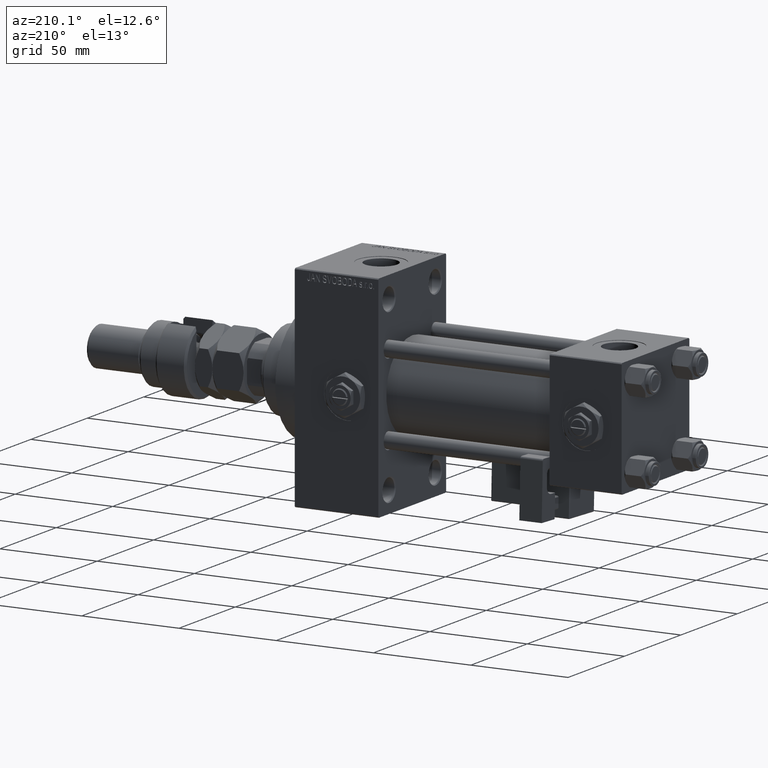
[diagram: clean part render]
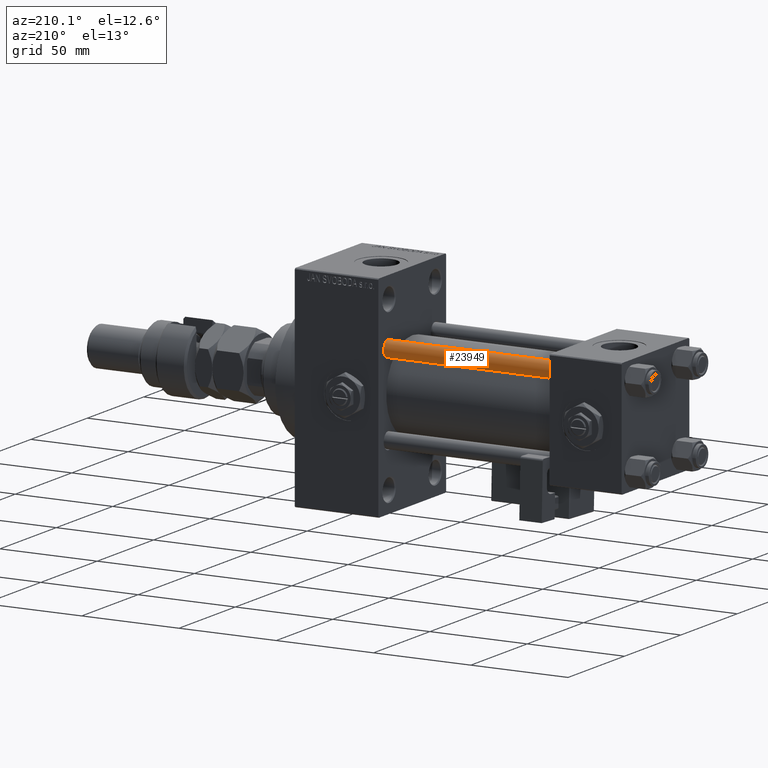
[diagram: same view with one face highlighted and labeled with its STEP entity id]
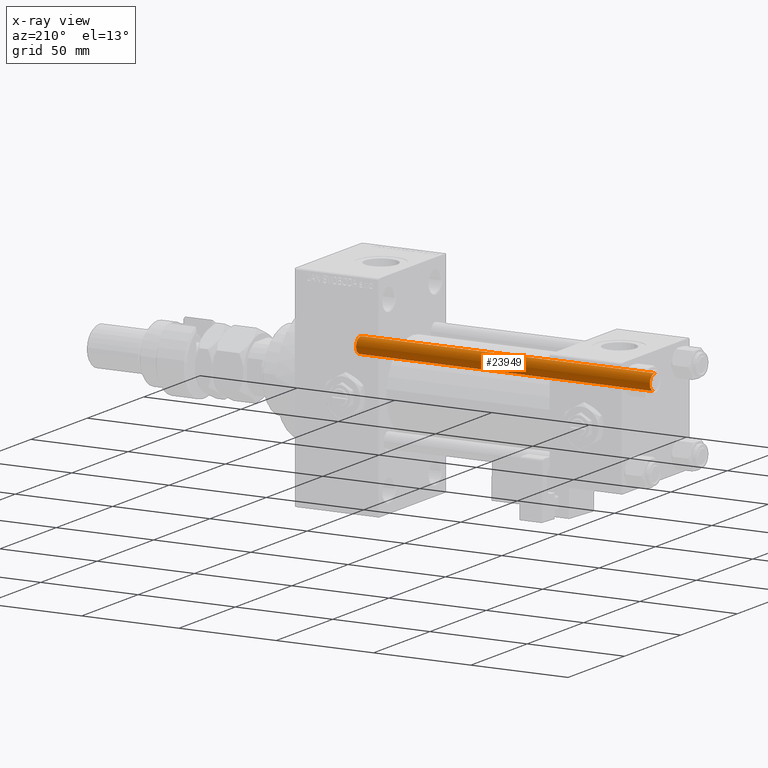
[diagram: x-ray of the same camera — body ghosted, the highlighted face saturated]
A machine part, auxiliary view. The second image highlights one B-rep face of the part: STEP entity #23949.
The next image is the same camera in x-ray: the body ghosted, the highlighted face saturated — about 0% of this face is hidden behind the body in this view.
In plain terms, the highlighted cylindrical surface (edge-blend (fillet) strip) has radius 4 mm, axis along (-1, -0, 0).
Its self-contained STEP definition (entity closure, byte-faithful):
#1381 = EDGE_CURVE ( 'NONE', #51756, #15388, #7783, .T. ) ;
#3311 = EDGE_CURVE ( 'NONE', #9487, #27802, #49824, .T. ) ;
#3358 = VECTOR ( 'NONE', #36536, 1000.000000000000000 ) ;
#3577 = CARTESIAN_POINT ( 'NONE',  ( 0.000000000000000000, 0.000000000000000000, 152.0000000000000000 ) ) ;
#4979 = CIRCLE ( 'NONE', #37612, 4.000000000000000000 ) ;
#7783 = LINE ( 'NONE', #40959, #3358 ) ;
#9326 = CARTESIAN_POINT ( 'NONE',  ( 0.000000000000000000, 0.000000000000000000, 0.5000000000000281997 ) ) ;
#9487 = VERTEX_POINT ( 'NONE', #40507 ) ;
#11967 = CARTESIAN_POINT ( 'NONE',  ( -4.000000000000000000, 0.000000000000000000, 152.0000000000000000 ) ) ;
#12124 = FACE_OUTER_BOUND ( 'NONE', #47982, .T. ) ;
#13250 = DIRECTION ( 'NONE',  ( 0.000000000000000000, 0.000000000000000000, -1.000000000000000000 ) ) ;
#13478 = CARTESIAN_POINT ( 'NONE',  ( 4.000000000000000000, 4.898587196589412829E-16, 0.5000000000000281997 ) ) ;
#13793 = DIRECTION ( 'NONE',  ( 1.000000000000000000, 0.000000000000000000, 0.000000000000000000 ) ) ;
#15388 = VERTEX_POINT ( 'NONE', #13478 ) ;
#16709 = ORIENTED_EDGE ( 'NONE', *, *, #21017, .T. ) ;
#18795 = ORIENTED_EDGE ( 'NONE', *, *, #1381, .T. ) ;
#21017 = EDGE_CURVE ( 'NONE', #9487, #51756, #4979, .T. ) ;
#23949 = ADVANCED_FACE ( 'NONE', ( #12124 ), #54397, .T. ) ;
#27802 = VERTEX_POINT ( 'NONE', #37402 ) ;
#29471 = ORIENTED_EDGE ( 'NONE', *, *, #3311, .F. ) ;
#32023 = AXIS2_PLACEMENT_3D ( 'NONE', #9326, #33928, #41682 ) ;
#33605 = CARTESIAN_POINT ( 'NONE',  ( 4.000000000000000000, 4.898587196589412829E-16, 151.5000000000000284 ) ) ;
#33928 = DIRECTION ( 'NONE',  ( -0.000000000000000000, -0.000000000000000000, 1.000000000000000000 ) ) ;
#35050 = CARTESIAN_POINT ( 'NONE',  ( 0.000000000000000000, 0.000000000000000000, 151.5000000000000284 ) ) ;
#36536 = DIRECTION ( 'NONE',  ( -0.000000000000000000, -0.000000000000000000, -1.000000000000000000 ) ) ;
#37289 = DIRECTION ( 'NONE',  ( -0.000000000000000000, -0.000000000000000000, -1.000000000000000000 ) ) ;
#37402 = CARTESIAN_POINT ( 'NONE',  ( -4.000000000000000000, 0.000000000000000000, 0.5000000000000281997 ) ) ;
#37612 = AXIS2_PLACEMENT_3D ( 'NONE', #35050, #13250, #13793 ) ;
#38192 = CIRCLE ( 'NONE', #32023, 4.000000000000000000 ) ;
#40507 = CARTESIAN_POINT ( 'NONE',  ( -4.000000000000000000, 0.000000000000000000, 151.5000000000000284 ) ) ;
#40959 = CARTESIAN_POINT ( 'NONE',  ( 4.000000000000000000, 4.898587196589412829E-16, 152.0000000000000000 ) ) ;
#41682 = DIRECTION ( 'NONE',  ( 1.000000000000000000, 0.000000000000000000, 0.000000000000000000 ) ) ;
#42070 = DIRECTION ( 'NONE',  ( -0.000000000000000000, -0.000000000000000000, -1.000000000000000000 ) ) ;
#45793 = VECTOR ( 'NONE', #42070, 1000.000000000000000 ) ;
#46646 = DIRECTION ( 'NONE',  ( -1.000000000000000000, 0.000000000000000000, 0.000000000000000000 ) ) ;
#47906 = ORIENTED_EDGE ( 'NONE', *, *, #51368, .T. ) ;
#47982 = EDGE_LOOP ( 'NONE', ( #16709, #18795, #47906, #29471 ) ) ;
#48314 = AXIS2_PLACEMENT_3D ( 'NONE', #3577, #37289, #46646 ) ;
#49824 = LINE ( 'NONE', #11967, #45793 ) ;
#51368 = EDGE_CURVE ( 'NONE', #15388, #27802, #38192, .T. ) ;
#51756 = VERTEX_POINT ( 'NONE', #33605 ) ;
#54397 = CYLINDRICAL_SURFACE ( 'NONE', #48314, 4.000000000000000000 ) ;